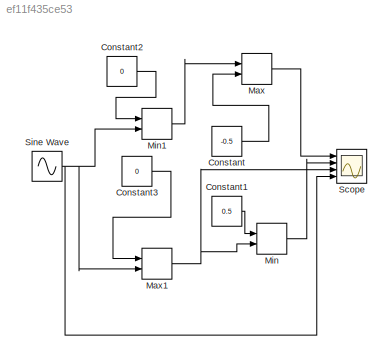
MODEL slx_ef11f435ce53
KIND model
CONFIG AbsTol = auto
CONFIG EnableMultiTasking = off
CONFIG FixedStep = 1e-3
CONFIG MaxStep = auto
CONFIG MinStep = auto
CONFIG RelTol = 1e-3
CONFIG SampleTimeConstraint = Unconstrained
CONFIG SolverName = FixedStepAuto
CONFIG StartTime = 0.0
CONFIG StopTime = 10.0
BLOCK [Constant] Constant
  Value = -0.5
BLOCK [Constant] Constant1
  Value = 0.5
BLOCK [Constant] Constant2
  Value = 0
BLOCK [Constant] Constant3
  Value = 0
BLOCK [MinMax] Max
  Function = max
  Inputs = 2
  Ports = [2, 1]
BLOCK [MinMax] Max1
  Function = max
  Inputs = 2
  Ports = [2, 1]
BLOCK [MinMax] Min
  Inputs = 2
  Ports = [2, 1]
BLOCK [MinMax] Min1
  Inputs = 2
  Ports = [2, 1]
BLOCK [Scope] Scope
  Floating = off
  NumInputPorts = 4
  Ports = [4]
  ScopeSpecificationString = Simulink.scopes.TimeScopeBlockCfg('CurrentConfiguration', extmgr.ConfigurationSet(extmgr.Configuration('Core','General UI',true),extmgr.Configuration('Core','Source UI',true),extmgr.Configuration('Sources','WiredSimulink',true),extmgr.Configuration('Visuals','Time Domain',true,'SerializedDisplays',{struct('MinYLimReal','-0.5625','MaxYLimReal','0.0625','YLabelReal','','MinYLimMag','0.00000','MaxYLi...<+2725ch>
BLOCK [Sin] Sine Wave
  Ports = [0, 1]
  SampleTime = 0
LINE Constant1:1 -> Min:1
LINE Constant2:1 -> Min1:1
LINE Constant3:1 -> Max1:1
LINE Constant:1 -> Max:2
NET Max1:1 -> Min:2, Scope:3
LINE Max:1 -> Scope:1
LINE Min1:1 -> Max:1
LINE Min:1 -> Scope:2
NET Sine Wave:1 -> Max1:2, Min1:2, Scope:4
note: NET lines group one-source signal fan-out (src -> all destinations, sorted); 1:1 wires keep LINE
